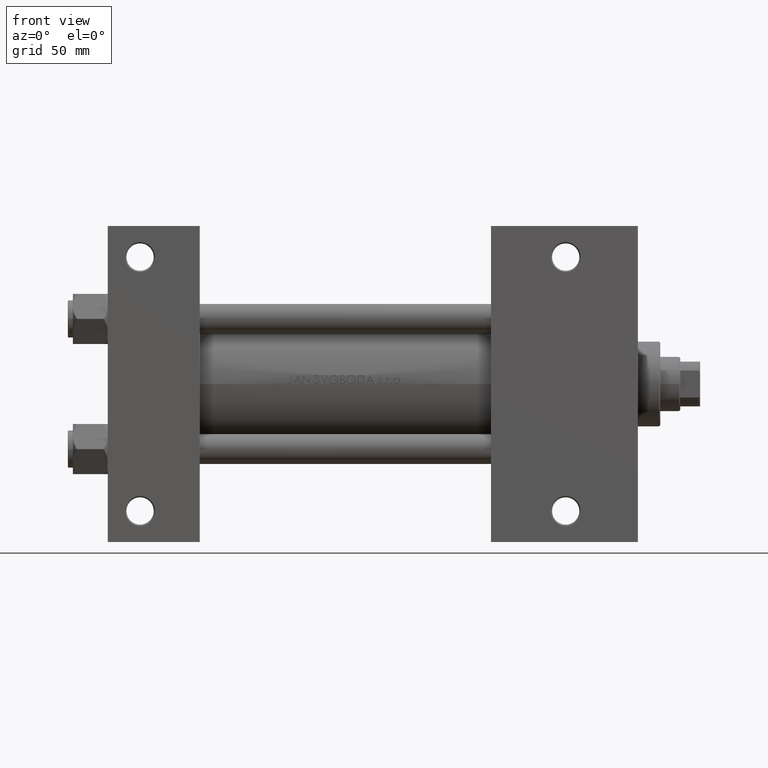
[diagram: clean part render]
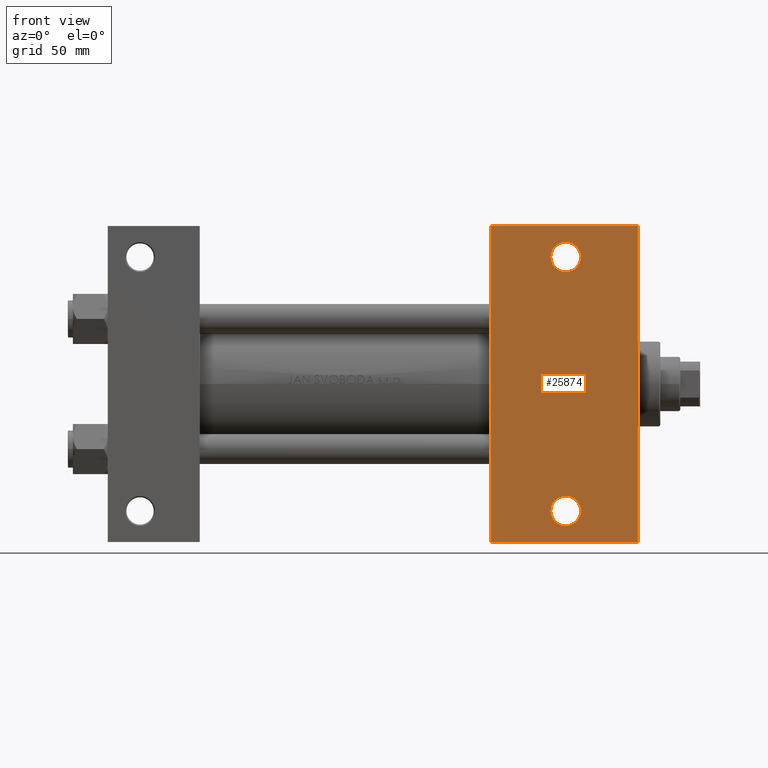
[diagram: same view with one face highlighted and labeled with its STEP entity id]
A machine part, front view. The second image highlights one B-rep face of the part: STEP entity #25874.
In plain terms, the highlighted planar face has unit normal (0, -1, 0).
Its self-contained STEP definition (entity closure, byte-faithful):
#1406 = VERTEX_POINT ( 'NONE', #9782 ) ;
#1514 = VECTOR ( 'NONE', #36446, 1000.000000000000000 ) ;
#2553 = CARTESIAN_POINT ( 'NONE',  ( 213.0000000000000000, 37.50000000000000000, -37.50000000000000000 ) ) ;
#2599 = VERTEX_POINT ( 'NONE', #15929 ) ;
#3408 = DIRECTION ( 'NONE',  ( -1.000000000000000000, 0.000000000000000000, -0.000000000000000000 ) ) ;
#4013 = EDGE_CURVE ( 'NONE', #24795, #1406, #41116, .T. ) ;
#4106 = VERTEX_POINT ( 'NONE', #7588 ) ;
#4979 = ORIENTED_EDGE ( 'NONE', *, *, #28711, .T. ) ;
#5687 = EDGE_LOOP ( 'NONE', ( #49178, #8031 ) ) ;
#7588 = CARTESIAN_POINT ( 'NONE',  ( 178.0005000000000734, 50.99999999999999289, -37.50000000000000000 ) ) ;
#7769 = CIRCLE ( 'NONE', #48328, 5.999499999999935440 ) ;
#7874 = FACE_OUTER_BOUND ( 'NONE', #48604, .T. ) ;
#8031 = ORIENTED_EDGE ( 'NONE', *, *, #21347, .T. ) ;
#9198 = CARTESIAN_POINT ( 'NONE',  ( 154.0000000000000000, 37.50000000000000000, -37.50000000000000000 ) ) ;
#9284 = AXIS2_PLACEMENT_3D ( 'NONE', #40752, #10826, #11086 ) ;
#9426 = AXIS2_PLACEMENT_3D ( 'NONE', #48984, #22337, #3408 ) ;
#9782 = CARTESIAN_POINT ( 'NONE',  ( 189.9994999999999266, -51.00000000000000000, -37.50000000000000000 ) ) ;
#10826 = DIRECTION ( 'NONE',  ( -0.000000000000000000, -0.000000000000000000, 1.000000000000000000 ) ) ;
#11086 = DIRECTION ( 'NONE',  ( -1.000000000000000000, 0.000000000000000000, 0.000000000000000000 ) ) ;
#11603 = FACE_BOUND ( 'NONE', #5687, .T. ) ;
#12759 = CIRCLE ( 'NONE', #27067, 5.999499999999935440 ) ;
#14005 = ORIENTED_EDGE ( 'NONE', *, *, #16775, .T. ) ;
#14354 = DIRECTION ( 'NONE',  ( 1.000000000000000000, 4.704334850106593822E-16, 0.000000000000000000 ) ) ;
#15929 = CARTESIAN_POINT ( 'NONE',  ( 154.0000000000000000, -63.50000000000000000, -37.50000000000000000 ) ) ;
#16227 = EDGE_CURVE ( 'NONE', #4106, #23314, #12759, .T. ) ;
#16775 = EDGE_CURVE ( 'NONE', #41221, #2599, #32220, .T. ) ;
#16866 = CARTESIAN_POINT ( 'NONE',  ( 213.0000000000000284, -63.50000000000002842, -37.50000000000000000 ) ) ;
#18666 = DIRECTION ( 'NONE',  ( -1.000000000000000000, 0.000000000000000000, 0.000000000000000000 ) ) ;
#19702 = ORIENTED_EDGE ( 'NONE', *, *, #20862, .T. ) ;
#19746 = AXIS2_PLACEMENT_3D ( 'NONE', #42904, #39172, #46877 ) ;
#20862 = EDGE_CURVE ( 'NONE', #23314, #4106, #7769, .T. ) ;
#21347 = EDGE_CURVE ( 'NONE', #1406, #24795, #48369, .T. ) ;
#22305 = DIRECTION ( 'NONE',  ( -0.000000000000000000, -0.000000000000000000, 1.000000000000000000 ) ) ;
#22337 = DIRECTION ( 'NONE',  ( 0.000000000000000000, 0.000000000000000000, -1.000000000000000000 ) ) ;
#23314 = VERTEX_POINT ( 'NONE', #34422 ) ;
#23346 = VERTEX_POINT ( 'NONE', #41396 ) ;
#24403 = LINE ( 'NONE', #9198, #45533 ) ;
#24795 = VERTEX_POINT ( 'NONE', #42276 ) ;
#25211 = ORIENTED_EDGE ( 'NONE', *, *, #16227, .T. ) ;
#25822 = CARTESIAN_POINT ( 'NONE',  ( 154.0000000000000284, 63.49999999999997158, -37.50000000000000000 ) ) ;
#25874 = ADVANCED_FACE ( 'NONE', ( #37549, #11603, #7874 ), #27306, .T. ) ;
#25891 = CARTESIAN_POINT ( 'NONE',  ( 184.0000000000000000, 50.99999999999999289, -37.50000000000000000 ) ) ;
#26289 = CARTESIAN_POINT ( 'NONE',  ( 184.0000000000000000, 50.99999999999999289, -37.50000000000000000 ) ) ;
#26768 = EDGE_LOOP ( 'NONE', ( #25211, #19702 ) ) ;
#27067 = AXIS2_PLACEMENT_3D ( 'NONE', #25891, #37625, #18666 ) ;
#27306 = PLANE ( 'NONE',  #9426 ) ;
#27425 = EDGE_CURVE ( 'NONE', #23346, #41221, #37180, .T. ) ;
#27991 = CARTESIAN_POINT ( 'NONE',  ( 154.0000000000000000, -63.50000000000000000, -37.50000000000000000 ) ) ;
#28711 = EDGE_CURVE ( 'NONE', #37047, #23346, #40291, .T. ) ;
#28823 = VECTOR ( 'NONE', #31977, 1000.000000000000000 ) ;
#30210 = VECTOR ( 'NONE', #14354, 1000.000000000000000 ) ;
#31977 = DIRECTION ( 'NONE',  ( -1.000000000000000000, 4.704334850106593822E-16, -0.000000000000000000 ) ) ;
#32220 = LINE ( 'NONE', #27991, #28823 ) ;
#33921 = ORIENTED_EDGE ( 'NONE', *, *, #34152, .F. ) ;
#34152 = EDGE_CURVE ( 'NONE', #37047, #2599, #24403, .T. ) ;
#34422 = CARTESIAN_POINT ( 'NONE',  ( 189.9994999999999266, 50.99999999999999289, -37.50000000000000000 ) ) ;
#35765 = CARTESIAN_POINT ( 'NONE',  ( 154.0000000000000284, 63.49999999999997158, -37.50000000000000000 ) ) ;
#36446 = DIRECTION ( 'NONE',  ( 0.000000000000000000, -1.000000000000000000, 0.000000000000000000 ) ) ;
#37047 = VERTEX_POINT ( 'NONE', #35765 ) ;
#37180 = LINE ( 'NONE', #2553, #1514 ) ;
#37519 = DIRECTION ( 'NONE',  ( -1.000000000000000000, 0.000000000000000000, 0.000000000000000000 ) ) ;
#37549 = FACE_BOUND ( 'NONE', #26768, .T. ) ;
#37625 = DIRECTION ( 'NONE',  ( -0.000000000000000000, -0.000000000000000000, 1.000000000000000000 ) ) ;
#39172 = DIRECTION ( 'NONE',  ( -0.000000000000000000, -0.000000000000000000, 1.000000000000000000 ) ) ;
#40291 = LINE ( 'NONE', #25822, #30210 ) ;
#40339 = DIRECTION ( 'NONE',  ( 0.000000000000000000, -1.000000000000000000, 0.000000000000000000 ) ) ;
#40752 = CARTESIAN_POINT ( 'NONE',  ( 184.0000000000000000, -51.00000000000000000, -37.50000000000000000 ) ) ;
#41116 = CIRCLE ( 'NONE', #9284, 5.999499999999935440 ) ;
#41221 = VERTEX_POINT ( 'NONE', #16866 ) ;
#41396 = CARTESIAN_POINT ( 'NONE',  ( 213.0000000000000568, 63.50000000000000000, -37.50000000000000000 ) ) ;
#42276 = CARTESIAN_POINT ( 'NONE',  ( 178.0005000000000734, -51.00000000000000000, -37.50000000000000000 ) ) ;
#42904 = CARTESIAN_POINT ( 'NONE',  ( 184.0000000000000000, -51.00000000000000000, -37.50000000000000000 ) ) ;
#45447 = ORIENTED_EDGE ( 'NONE', *, *, #27425, .T. ) ;
#45533 = VECTOR ( 'NONE', #40339, 1000.000000000000000 ) ;
#46877 = DIRECTION ( 'NONE',  ( -1.000000000000000000, 0.000000000000000000, 0.000000000000000000 ) ) ;
#48328 = AXIS2_PLACEMENT_3D ( 'NONE', #26289, #22305, #37519 ) ;
#48369 = CIRCLE ( 'NONE', #19746, 5.999499999999935440 ) ;
#48604 = EDGE_LOOP ( 'NONE', ( #33921, #4979, #45447, #14005 ) ) ;
#48984 = CARTESIAN_POINT ( 'NONE',  ( 213.0000000000000000, 37.50000000000000000, -37.50000000000000000 ) ) ;
#49178 = ORIENTED_EDGE ( 'NONE', *, *, #4013, .T. ) ;